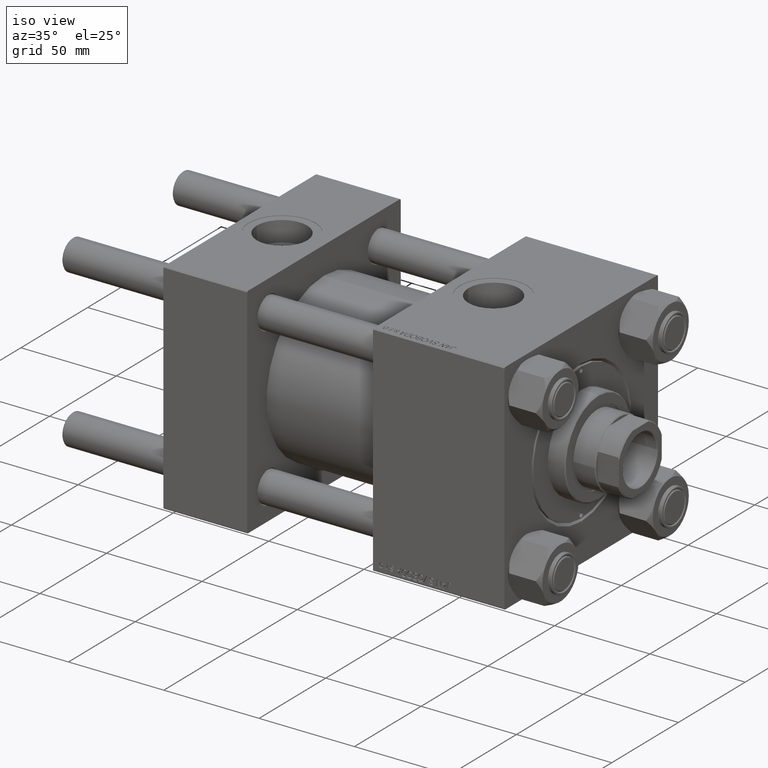
[diagram: clean part render]
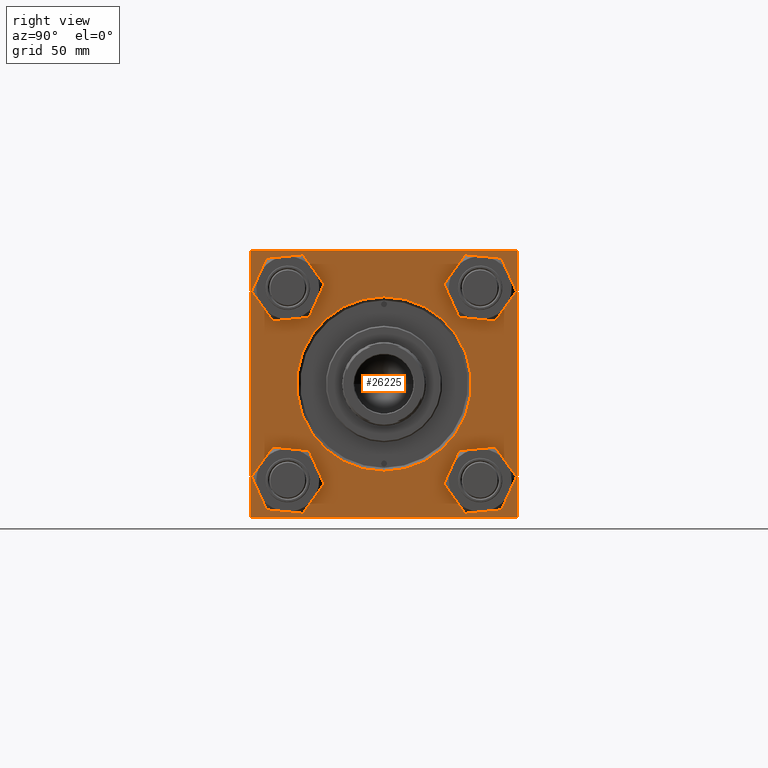
[diagram: tour spotlight — one face highlighted and labeled with its STEP entity id]
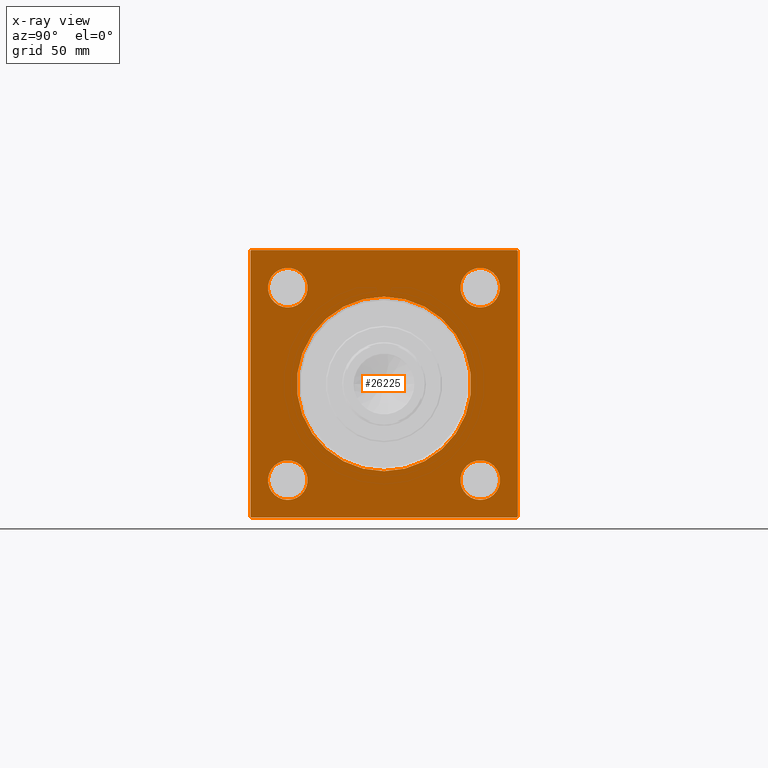
[diagram: x-ray of the same camera — body ghosted, this tour face saturated]
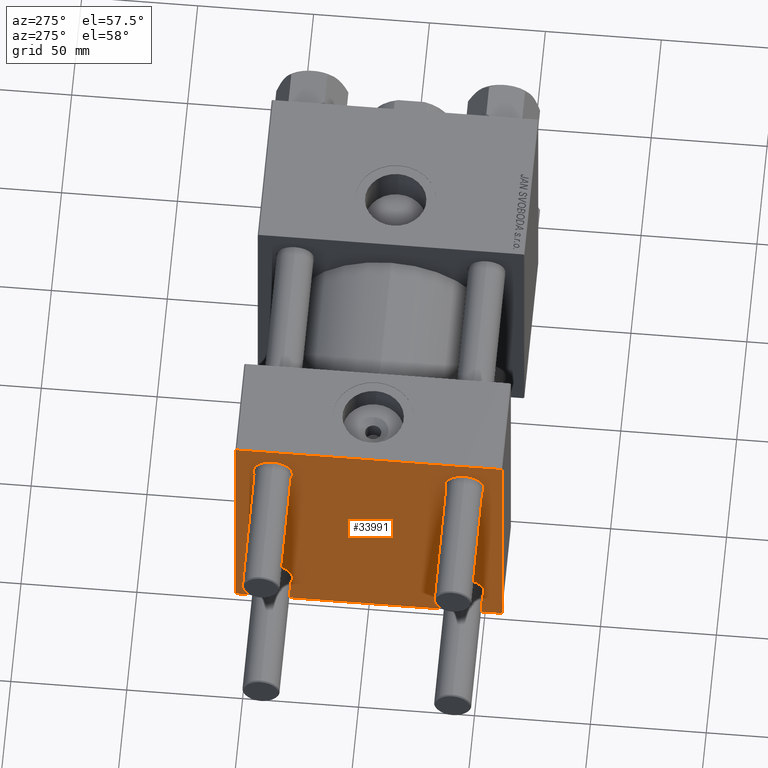
[diagram: tour spotlight — one face highlighted and labeled with its STEP entity id]
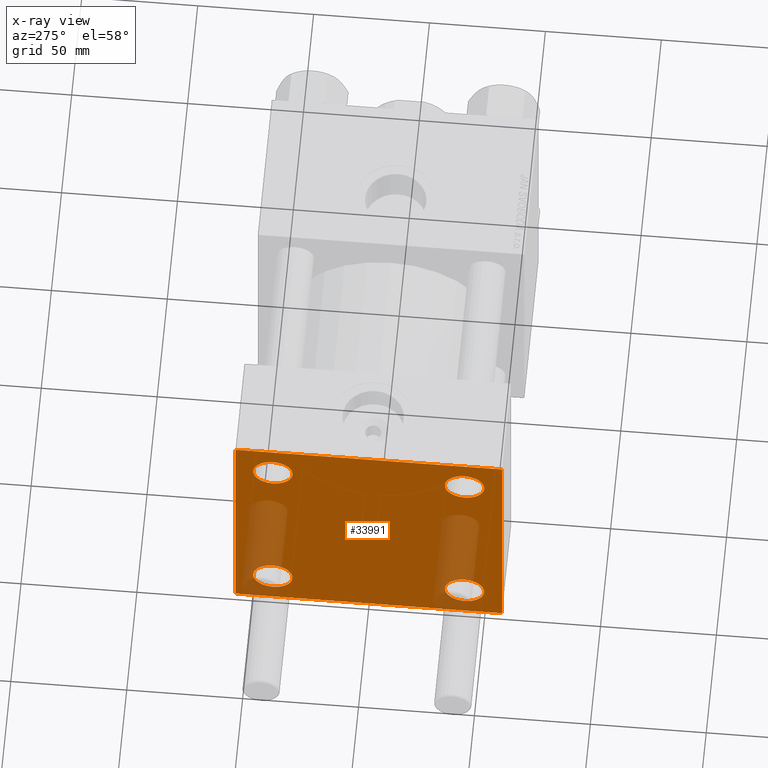
[diagram: x-ray of the same camera — body ghosted, this tour face saturated]
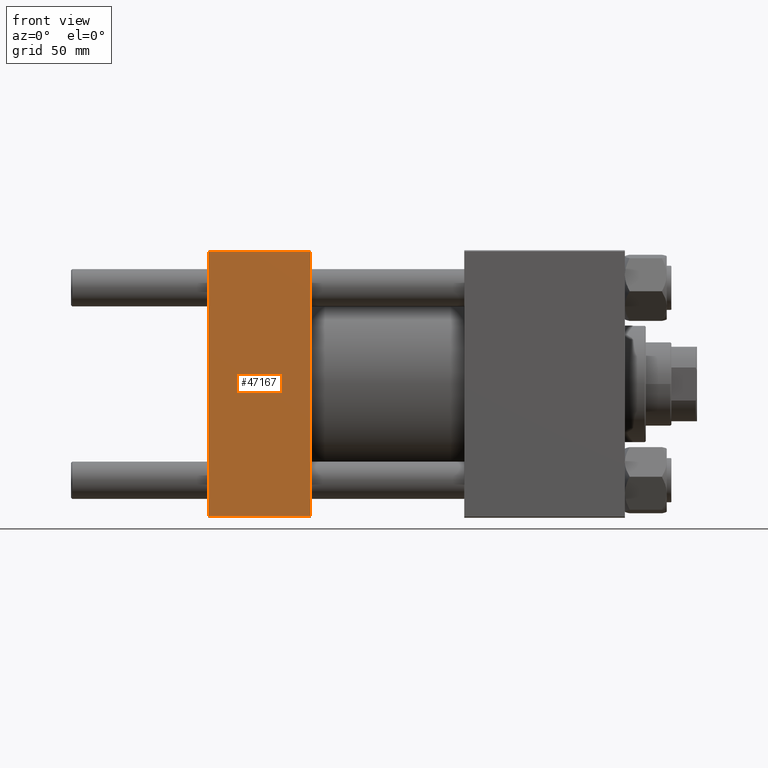
[diagram: tour spotlight — one face highlighted and labeled with its STEP entity id]
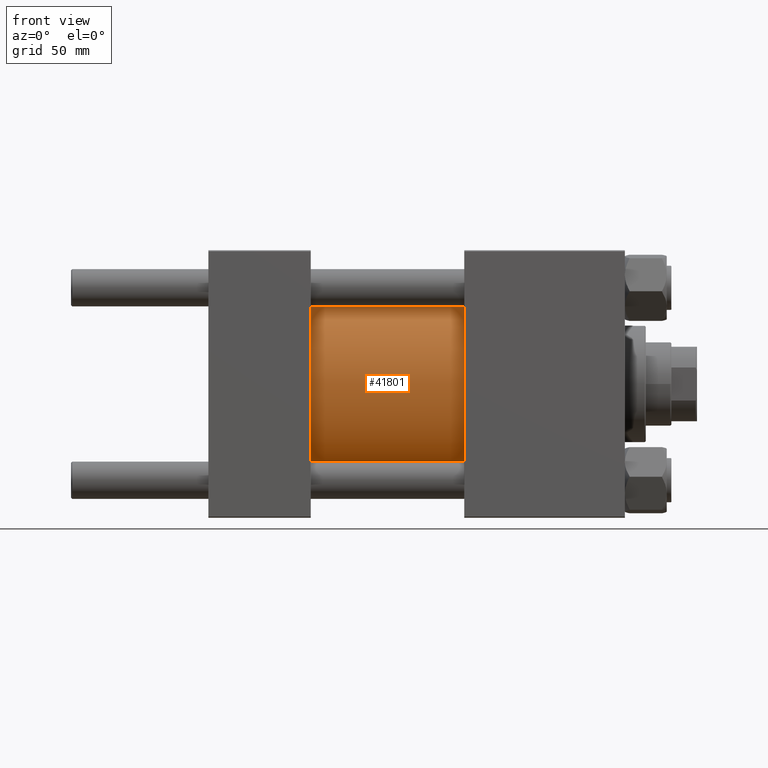
[diagram: tour spotlight — one face highlighted and labeled with its STEP entity id]
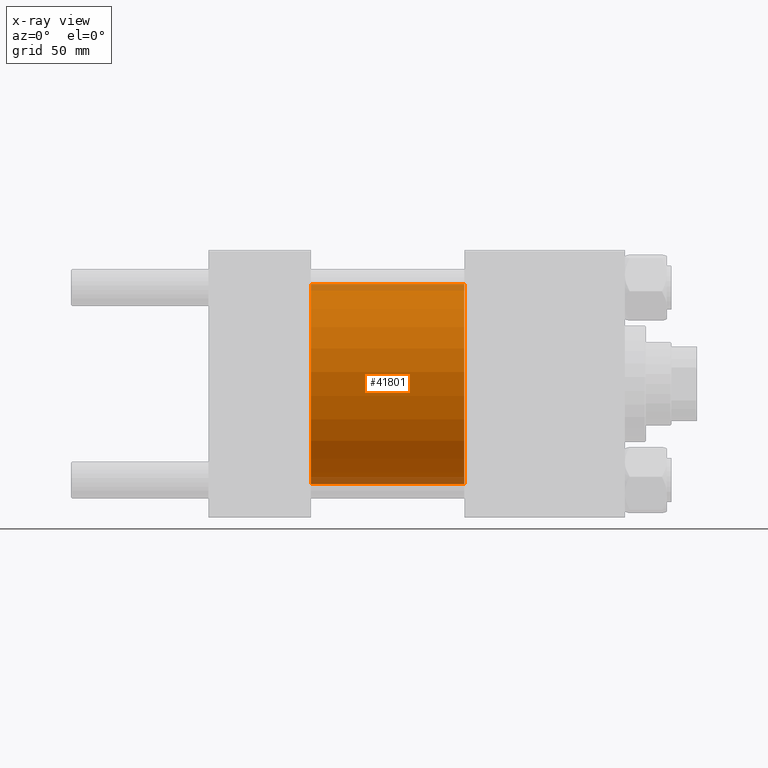
[diagram: x-ray of the same camera — body ghosted, this tour face saturated]
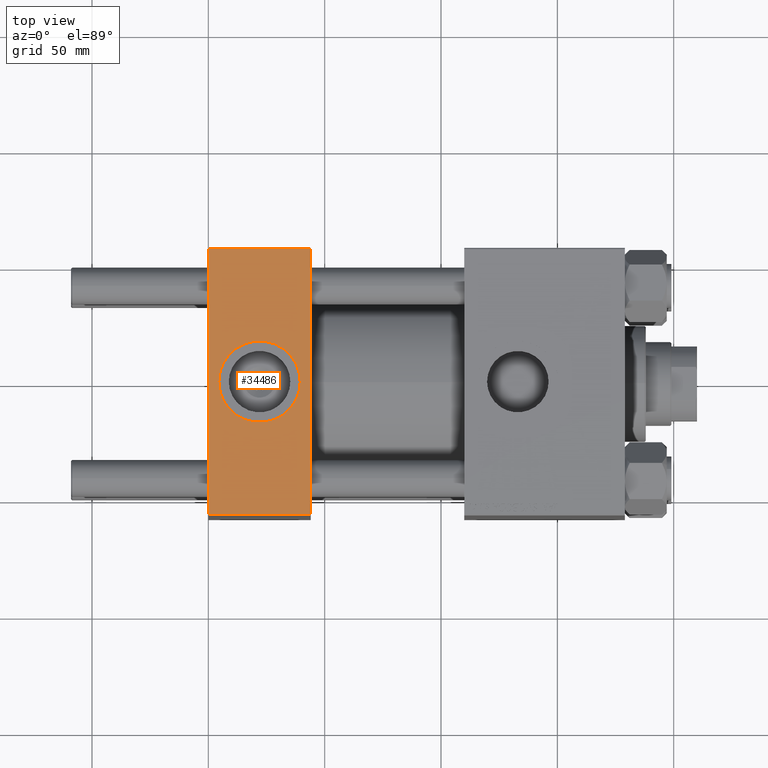
[diagram: tour spotlight — one face highlighted and labeled with its STEP entity id]
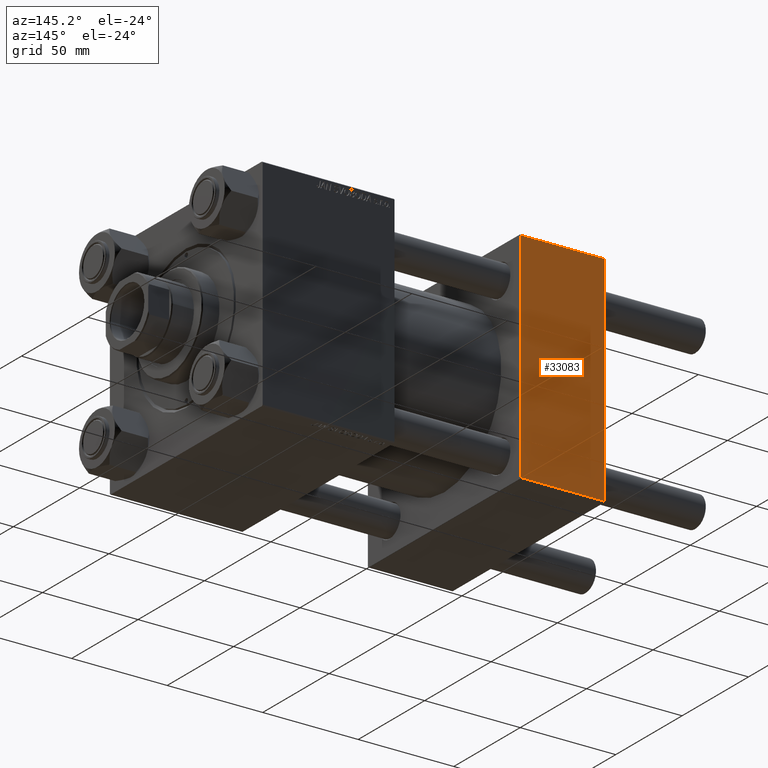
[diagram: tour spotlight — one face highlighted and labeled with its STEP entity id]
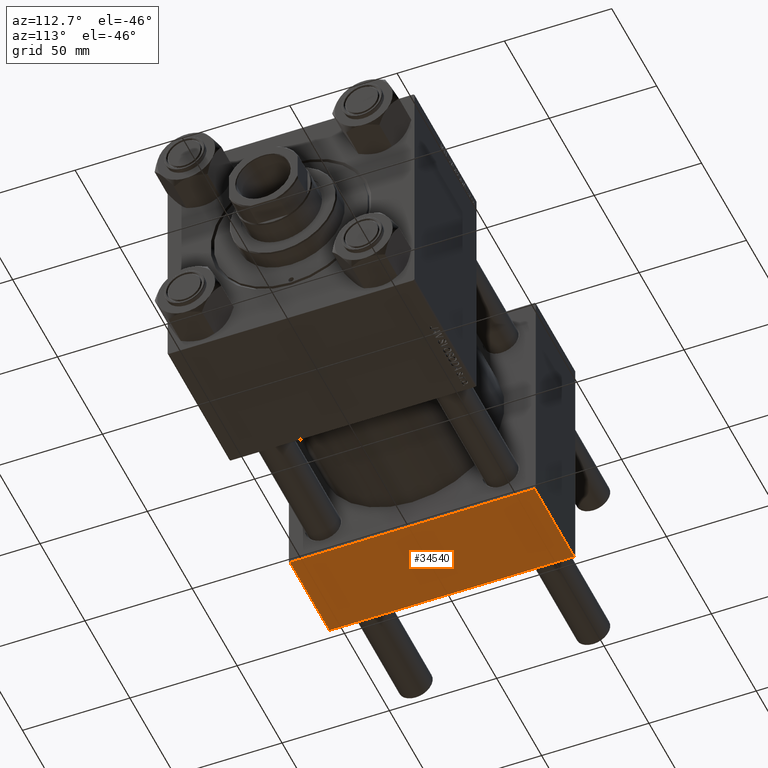
[diagram: tour spotlight — one face highlighted and labeled with its STEP entity id]
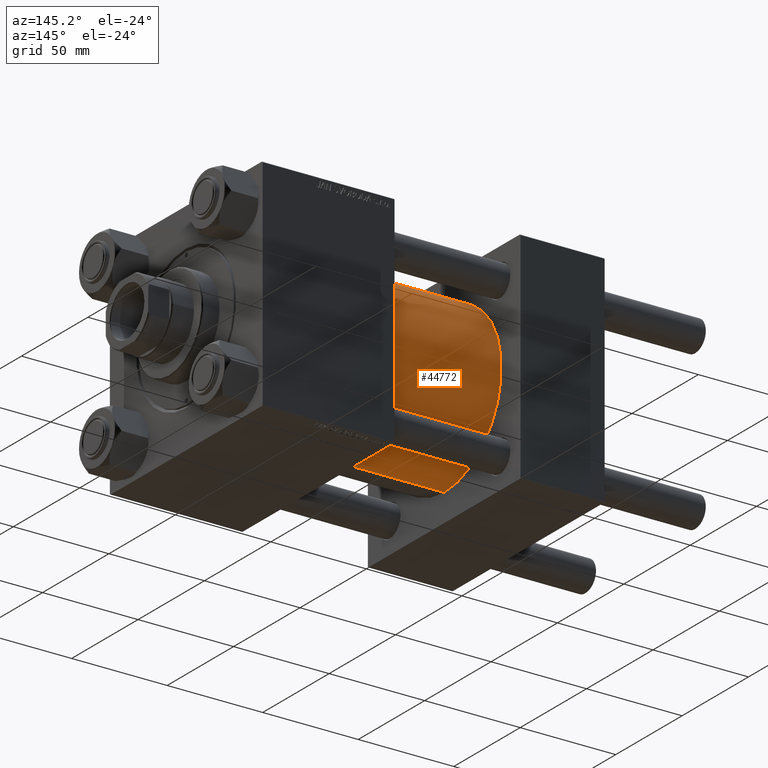
[diagram: tour spotlight — one face highlighted and labeled with its STEP entity id]
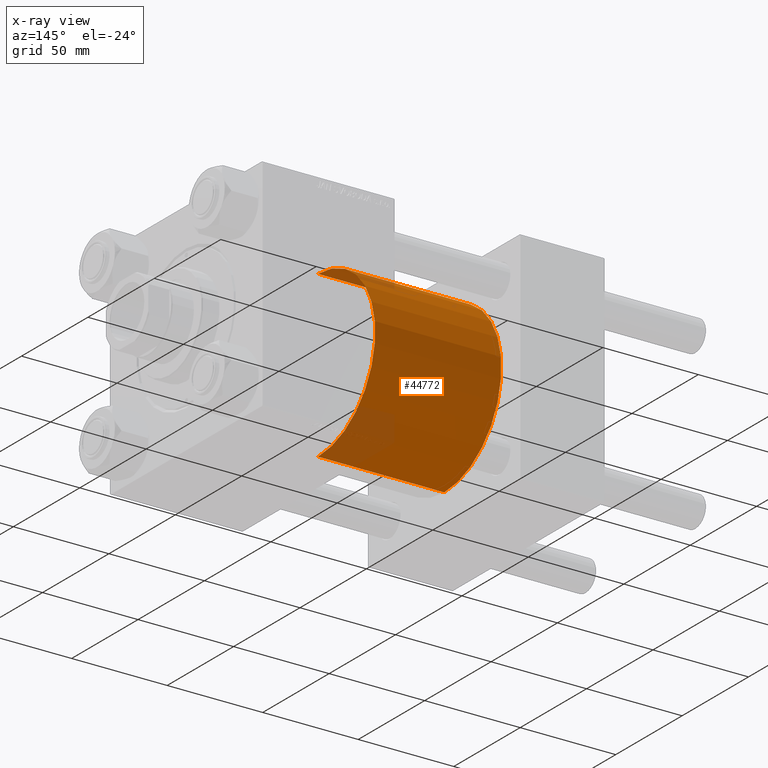
[diagram: x-ray of the same camera — body ghosted, this tour face saturated]
A machine part: a face-by-face anatomy tour. The part has 1188 B-rep faces; the first image is the clean iso view, then the 8 largest visible faces are spotlighted one at a time (largest first), each with its STEP entity span.

Face 1 — right view, entity #26225. An x-ray twin of the same camera follows (body ghosted, this face saturated) — the face is partly hidden behind the body. In plain terms, the highlighted planar face has unit normal (-1, 0, 0).
Definition (entity closure, byte-faithful):
#557 = LINE ( 'NONE', #40007, #48887 ) ;
#655 = CARTESIAN_POINT ( 'NONE',  ( 179.0000000000000000, 0.000000000000000000, -37.50000000000000711 ) ) ;
#891 = EDGE_CURVE ( 'NONE', #45429, #24150, #18004, .T. ) ;
#993 = DIRECTION ( 'NONE',  ( 0.000000000000000000, 0.7071067811865721087, -0.7071067811865230368 ) ) ;
#1015 = EDGE_CURVE ( 'NONE', #6591, #17448, #30802, .T. ) ;
#1147 = ORIENTED_EDGE ( 'NONE', *, *, #29885, .T. ) ;
#1395 = VECTOR ( 'NONE', #14904, 1000.000000000000000 ) ;
#1554 = CARTESIAN_POINT ( 'NONE',  ( 179.0000000000000000, 41.34999999999999432, 49.85000000000001563 ) ) ;
#2016 = AXIS2_PLACEMENT_3D ( 'NONE', #16803, #44575, #9657 ) ;
#2120 = FACE_BOUND ( 'NONE', #20111, .T. ) ;
#2608 = FACE_BOUND ( 'NONE', #5828, .T. ) ;
#3176 = VECTOR ( 'NONE', #26640, 1000.000000000000000 ) ;
#3525 = LINE ( 'NONE', #30261, #44339 ) ;
#3857 = EDGE_CURVE ( 'NONE', #24150, #30100, #47856, .T. ) ;
#4543 = CARTESIAN_POINT ( 'NONE',  ( 179.0000000000000000, -56.99999999999995737, -57.49999999999997868 ) ) ;
#4576 = AXIS2_PLACEMENT_3D ( 'NONE', #33418, #48484, #25528 ) ;
#4856 = CARTESIAN_POINT ( 'NONE',  ( 179.0000000000000000, 56.99999999999997158, 57.50000000000000711 ) ) ;
#5161 = CARTESIAN_POINT ( 'NONE',  ( 179.0000000000000000, 41.34999999999999432, -49.85000000000001563 ) ) ;
#5569 = CARTESIAN_POINT ( 'NONE',  ( 179.0000000000000000, -56.99999999999998579, 57.49999999999999289 ) ) ;
#5710 = LINE ( 'NONE', #17680, #43718 ) ;
#5828 = EDGE_LOOP ( 'NONE', ( #39855, #9512 ) ) ;
#5912 = AXIS2_PLACEMENT_3D ( 'NONE', #49549, #7503, #14637 ) ;
#6467 = DIRECTION ( 'NONE',  ( -1.000000000000000000, 0.000000000000000000, -0.000000000000000000 ) ) ;
#6591 = VERTEX_POINT ( 'NONE', #15125 ) ;
#6872 = EDGE_CURVE ( 'NONE', #26620, #45429, #557, .T. ) ;
#6884 = DIRECTION ( 'NONE',  ( 0.000000000000000000, 0.000000000000000000, 1.000000000000000000 ) ) ;
#7263 = VECTOR ( 'NONE', #993, 1000.000000000000000 ) ;
#7295 = DIRECTION ( 'NONE',  ( 0.000000000000000000, 0.000000000000000000, 1.000000000000000000 ) ) ;
#7461 = CARTESIAN_POINT ( 'NONE',  ( 179.0000000000000000, 56.99999999999997158, 57.50000000000000711 ) ) ;
#7464 = DIRECTION ( 'NONE',  ( 0.000000000000000000, 0.000000000000000000, 1.000000000000000000 ) ) ;
#7503 = DIRECTION ( 'NONE',  ( -1.000000000000000000, 0.000000000000000000, -0.000000000000000000 ) ) ;
#7600 = VERTEX_POINT ( 'NONE', #26495 ) ;
#7642 = EDGE_CURVE ( 'NONE', #48865, #7600, #39144, .T. ) ;
#7685 = DIRECTION ( 'NONE',  ( 0.000000000000000000, 0.000000000000000000, 1.000000000000000000 ) ) ;
#7781 = DIRECTION ( 'NONE',  ( -1.000000000000000000, 0.000000000000000000, -0.000000000000000000 ) ) ;
#8317 = AXIS2_PLACEMENT_3D ( 'NONE', #26067, #6467, #7464 ) ;
#8647 = AXIS2_PLACEMENT_3D ( 'NONE', #42201, #49355, #7295 ) ;
#8845 = AXIS2_PLACEMENT_3D ( 'NONE', #28148, #7781, #16437 ) ;
#9498 = FACE_BOUND ( 'NONE', #27398, .T. ) ;
#9512 = ORIENTED_EDGE ( 'NONE', *, *, #33015, .T. ) ;
#9657 = DIRECTION ( 'NONE',  ( 0.000000000000000000, 0.000000000000000000, 1.000000000000000000 ) ) ;
#10407 = DIRECTION ( 'NONE',  ( 0.000000000000000000, -1.000000000000000000, -1.206764157201257291E-16 ) ) ;
#10622 = EDGE_CURVE ( 'NONE', #13521, #21506, #11587, .T. ) ;
#10685 = CARTESIAN_POINT ( 'NONE',  ( 179.0000000000000000, -41.34999999999998721, 49.85000000000002274 ) ) ;
#10822 = CARTESIAN_POINT ( 'NONE',  ( 179.0000000000000000, 57.50000000000000000, 57.50000000000000711 ) ) ;
#11587 = CIRCLE ( 'NONE', #5912, 8.500000000000007105 ) ;
#11963 = CARTESIAN_POINT ( 'NONE',  ( 179.0000000000000000, 41.34999999999999432, -41.35000000000000142 ) ) ;
#13196 = EDGE_CURVE ( 'NONE', #50102, #23178, #38378, .T. ) ;
#13521 = VERTEX_POINT ( 'NONE', #49566 ) ;
#13814 = PLANE ( 'NONE',  #4576 ) ;
#13869 = VERTEX_POINT ( 'NONE', #17443 ) ;
#14136 = CIRCLE ( 'NONE', #28020, 8.500000000000007105 ) ;
#14594 = CARTESIAN_POINT ( 'NONE',  ( 179.0000000000000000, 57.50000000000000000, 57.00000000000000711 ) ) ;
#14637 = DIRECTION ( 'NONE',  ( 0.000000000000000000, 0.000000000000000000, 1.000000000000000000 ) ) ;
#14904 = DIRECTION ( 'NONE',  ( 0.000000000000000000, 0.000000000000000000, -1.000000000000000000 ) ) ;
#14940 = CARTESIAN_POINT ( 'NONE',  ( 179.0000000000000000, -57.49999999999999289, 56.99999999999996447 ) ) ;
#15125 = CARTESIAN_POINT ( 'NONE',  ( 179.0000000000000000, -41.34999999999998721, -49.85000000000002274 ) ) ;
#16047 = ORIENTED_EDGE ( 'NONE', *, *, #26735, .T. ) ;
#16217 = EDGE_CURVE ( 'NONE', #7600, #48865, #16543, .T. ) ;
#16384 = VERTEX_POINT ( 'NONE', #28302 ) ;
#16437 = DIRECTION ( 'NONE',  ( 0.000000000000000000, 0.000000000000000000, 1.000000000000000000 ) ) ;
#16543 = CIRCLE ( 'NONE', #23852, 37.50000000000000711 ) ;
#16582 = CARTESIAN_POINT ( 'NONE',  ( 179.0000000000000000, 41.34999999999999432, 32.84999999999999432 ) ) ;
#16803 = CARTESIAN_POINT ( 'NONE',  ( 179.0000000000000000, -41.34999999999998721, 41.35000000000000853 ) ) ;
#17282 = DIRECTION ( 'NONE',  ( 0.000000000000000000, -1.000000000000000000, -1.206764157201257291E-16 ) ) ;
#17443 = CARTESIAN_POINT ( 'NONE',  ( 179.0000000000000000, 57.00000000000000000, -57.49999999999996447 ) ) ;
#17448 = VERTEX_POINT ( 'NONE', #29806 ) ;
#17680 = CARTESIAN_POINT ( 'NONE',  ( 179.0000000000000000, 57.50000000000000000, -56.99999999999994316 ) ) ;
#18004 = LINE ( 'NONE', #46014, #3176 ) ;
#18291 = DIRECTION ( 'NONE',  ( -1.000000000000000000, 0.000000000000000000, -0.000000000000000000 ) ) ;
#18315 = CARTESIAN_POINT ( 'NONE',  ( 179.0000000000000000, -56.99999999999995737, -57.49999999999997868 ) ) ;
#19296 = CARTESIAN_POINT ( 'NONE',  ( 179.0000000000000000, -41.34999999999998721, 41.35000000000000853 ) ) ;
#19702 = ORIENTED_EDGE ( 'NONE', *, *, #28875, .T. ) ;
#20111 = EDGE_LOOP ( 'NONE', ( #46166, #30789 ) ) ;
#20399 = LINE ( 'NONE', #4856, #28546 ) ;
#21506 = VERTEX_POINT ( 'NONE', #5161 ) ;
#22614 = ORIENTED_EDGE ( 'NONE', *, *, #48745, .F. ) ;
#22621 = ORIENTED_EDGE ( 'NONE', *, *, #13196, .T. ) ;
#23178 = VERTEX_POINT ( 'NONE', #16582 ) ;
#23513 = EDGE_LOOP ( 'NONE', ( #29845, #29330 ) ) ;
#23745 = EDGE_LOOP ( 'NONE', ( #49914, #25292, #33861, #19702, #22614, #1147, #31414, #39040 ) ) ;
#23852 = AXIS2_PLACEMENT_3D ( 'NONE', #43092, #34686, #7685 ) ;
#24150 = VERTEX_POINT ( 'NONE', #45376 ) ;
#25040 = FACE_OUTER_BOUND ( 'NONE', #23745, .T. ) ;
#25292 = ORIENTED_EDGE ( 'NONE', *, *, #3857, .T. ) ;
#25528 = DIRECTION ( 'NONE',  ( -0.000000000000000000, 0.000000000000000000, 1.000000000000000000 ) ) ;
#25531 = ORIENTED_EDGE ( 'NONE', *, *, #16217, .T. ) ;
#25943 = DIRECTION ( 'NONE',  ( -1.000000000000000000, 0.000000000000000000, -0.000000000000000000 ) ) ;
#26067 = CARTESIAN_POINT ( 'NONE',  ( 179.0000000000000000, -41.34999999999998721, -41.35000000000000853 ) ) ;
#26225 = ADVANCED_FACE ( 'NONE', ( #2608, #2120, #37254, #48977, #9498, #25040 ), #13814, .F. ) ;
#26495 = CARTESIAN_POINT ( 'NONE',  ( 179.0000000000000000, 4.592425496802575156E-15, 37.50000000000000711 ) ) ;
#26620 = VERTEX_POINT ( 'NONE', #5569 ) ;
#26640 = DIRECTION ( 'NONE',  ( 0.000000000000000000, 0.000000000000000000, -1.000000000000000000 ) ) ;
#26735 = EDGE_CURVE ( 'NONE', #23178, #50102, #41197, .T. ) ;
#27398 = EDGE_LOOP ( 'NONE', ( #49656, #25531 ) ) ;
#27468 = EDGE_CURVE ( 'NONE', #13869, #30100, #44556, .T. ) ;
#28020 = AXIS2_PLACEMENT_3D ( 'NONE', #11963, #43047, #32080 ) ;
#28148 = CARTESIAN_POINT ( 'NONE',  ( 179.0000000000000000, -41.34999999999998721, -41.35000000000000853 ) ) ;
#28302 = CARTESIAN_POINT ( 'NONE',  ( 179.0000000000000000, 57.50000000000000000, -56.99999999999994316 ) ) ;
#28485 = VERTEX_POINT ( 'NONE', #10685 ) ;
#28546 = VECTOR ( 'NONE', #43574, 1000.000000000000000 ) ;
#28875 = EDGE_CURVE ( 'NONE', #13869, #16384, #5710, .T. ) ;
#29143 = DIRECTION ( 'NONE',  ( -1.000000000000000000, 0.000000000000000000, -0.000000000000000000 ) ) ;
#29330 = ORIENTED_EDGE ( 'NONE', *, *, #38697, .T. ) ;
#29383 = VERTEX_POINT ( 'NONE', #7461 ) ;
#29617 = CIRCLE ( 'NONE', #2016, 8.500000000000007105 ) ;
#29806 = CARTESIAN_POINT ( 'NONE',  ( 179.0000000000000000, -41.34999999999998721, -32.85000000000000142 ) ) ;
#29845 = ORIENTED_EDGE ( 'NONE', *, *, #35251, .T. ) ;
#29885 = EDGE_CURVE ( 'NONE', #39202, #29383, #20399, .T. ) ;
#30100 = VERTEX_POINT ( 'NONE', #18315 ) ;
#30255 = DIRECTION ( 'NONE',  ( 0.000000000000000000, 0.000000000000000000, 1.000000000000000000 ) ) ;
#30261 = CARTESIAN_POINT ( 'NONE',  ( 179.0000000000000000, 57.50000000000000000, 57.50000000000000711 ) ) ;
#30574 = CARTESIAN_POINT ( 'NONE',  ( 179.0000000000000000, 0.000000000000000000, 0.000000000000000000 ) ) ;
#30789 = ORIENTED_EDGE ( 'NONE', *, *, #10622, .T. ) ;
#30802 = CIRCLE ( 'NONE', #8845, 8.500000000000007105 ) ;
#31149 = CIRCLE ( 'NONE', #39294, 8.500000000000007105 ) ;
#31387 = CARTESIAN_POINT ( 'NONE',  ( 179.0000000000000000, -41.34999999999998721, 32.85000000000000142 ) ) ;
#31414 = ORIENTED_EDGE ( 'NONE', *, *, #39607, .T. ) ;
#32080 = DIRECTION ( 'NONE',  ( 0.000000000000000000, 0.000000000000000000, 1.000000000000000000 ) ) ;
#33015 = EDGE_CURVE ( 'NONE', #17448, #6591, #41647, .T. ) ;
#33418 = CARTESIAN_POINT ( 'NONE',  ( 179.0000000000000000, 0.000000000000000000, 0.000000000000000000 ) ) ;
#33579 = CARTESIAN_POINT ( 'NONE',  ( 179.0000000000000000, 41.34999999999999432, 41.35000000000000142 ) ) ;
#33861 = ORIENTED_EDGE ( 'NONE', *, *, #27468, .F. ) ;
#34686 = DIRECTION ( 'NONE',  ( -1.000000000000000000, 0.000000000000000000, -0.000000000000000000 ) ) ;
#35251 = EDGE_CURVE ( 'NONE', #49126, #28485, #31149, .T. ) ;
#35956 = AXIS2_PLACEMENT_3D ( 'NONE', #33579, #25943, #30255 ) ;
#37254 = FACE_BOUND ( 'NONE', #46167, .T. ) ;
#38378 = CIRCLE ( 'NONE', #35956, 8.500000000000007105 ) ;
#38521 = EDGE_CURVE ( 'NONE', #21506, #13521, #14136, .T. ) ;
#38697 = EDGE_CURVE ( 'NONE', #28485, #49126, #29617, .T. ) ;
#39040 = ORIENTED_EDGE ( 'NONE', *, *, #6872, .T. ) ;
#39144 = CIRCLE ( 'NONE', #43234, 37.50000000000000711 ) ;
#39202 = VERTEX_POINT ( 'NONE', #14594 ) ;
#39294 = AXIS2_PLACEMENT_3D ( 'NONE', #19296, #18291, #49616 ) ;
#39581 = VECTOR ( 'NONE', #17282, 1000.000000000000000 ) ;
#39607 = EDGE_CURVE ( 'NONE', #29383, #26620, #3525, .T. ) ;
#39855 = ORIENTED_EDGE ( 'NONE', *, *, #1015, .T. ) ;
#40007 = CARTESIAN_POINT ( 'NONE',  ( 179.0000000000000000, -57.49999999999999289, 56.99999999999996447 ) ) ;
#41197 = CIRCLE ( 'NONE', #8647, 8.500000000000007105 ) ;
#41647 = CIRCLE ( 'NONE', #8317, 8.500000000000007105 ) ;
#42201 = CARTESIAN_POINT ( 'NONE',  ( 179.0000000000000000, 41.34999999999999432, 41.35000000000000142 ) ) ;
#43047 = DIRECTION ( 'NONE',  ( -1.000000000000000000, 0.000000000000000000, -0.000000000000000000 ) ) ;
#43092 = CARTESIAN_POINT ( 'NONE',  ( 179.0000000000000000, 0.000000000000000000, 0.000000000000000000 ) ) ;
#43234 = AXIS2_PLACEMENT_3D ( 'NONE', #30574, #29143, #6884 ) ;
#43331 = DIRECTION ( 'NONE',  ( -0.000000000000000000, -0.7071067811865328068, -0.7071067811865622277 ) ) ;
#43574 = DIRECTION ( 'NONE',  ( 0.000000000000000000, -0.7071067811865672237, 0.7071067811865279218 ) ) ;
#43718 = VECTOR ( 'NONE', #48002, 1000.000000000000000 ) ;
#44293 = CARTESIAN_POINT ( 'NONE',  ( 179.0000000000000000, 57.50000000000000000, -57.49999999999996447 ) ) ;
#44339 = VECTOR ( 'NONE', #10407, 1000.000000000000000 ) ;
#44556 = LINE ( 'NONE', #44293, #39581 ) ;
#44575 = DIRECTION ( 'NONE',  ( -1.000000000000000000, 0.000000000000000000, -0.000000000000000000 ) ) ;
#45376 = CARTESIAN_POINT ( 'NONE',  ( 179.0000000000000000, -57.49999999999999289, -56.99999999999997868 ) ) ;
#45429 = VERTEX_POINT ( 'NONE', #14940 ) ;
#46014 = CARTESIAN_POINT ( 'NONE',  ( 179.0000000000000000, -57.49999999999999289, 57.49999999999999289 ) ) ;
#46166 = ORIENTED_EDGE ( 'NONE', *, *, #38521, .T. ) ;
#46167 = EDGE_LOOP ( 'NONE', ( #16047, #22621 ) ) ;
#47856 = LINE ( 'NONE', #4543, #7263 ) ;
#48002 = DIRECTION ( 'NONE',  ( -0.000000000000000000, 0.7071067811865279218, 0.7071067811865672237 ) ) ;
#48484 = DIRECTION ( 'NONE',  ( -1.000000000000000000, 0.000000000000000000, -0.000000000000000000 ) ) ;
#48745 = EDGE_CURVE ( 'NONE', #39202, #16384, #49811, .T. ) ;
#48865 = VERTEX_POINT ( 'NONE', #655 ) ;
#48887 = VECTOR ( 'NONE', #43331, 1000.000000000000000 ) ;
#48977 = FACE_BOUND ( 'NONE', #23513, .T. ) ;
#49126 = VERTEX_POINT ( 'NONE', #31387 ) ;
#49355 = DIRECTION ( 'NONE',  ( -1.000000000000000000, 0.000000000000000000, -0.000000000000000000 ) ) ;
#49549 = CARTESIAN_POINT ( 'NONE',  ( 179.0000000000000000, 41.34999999999999432, -41.35000000000000142 ) ) ;
#49566 = CARTESIAN_POINT ( 'NONE',  ( 179.0000000000000000, 41.34999999999999432, -32.84999999999999432 ) ) ;
#49616 = DIRECTION ( 'NONE',  ( 0.000000000000000000, 0.000000000000000000, 1.000000000000000000 ) ) ;
#49656 = ORIENTED_EDGE ( 'NONE', *, *, #7642, .T. ) ;
#49811 = LINE ( 'NONE', #10822, #1395 ) ;
#49914 = ORIENTED_EDGE ( 'NONE', *, *, #891, .T. ) ;
#50102 = VERTEX_POINT ( 'NONE', #1554 ) ;

Face 2 — auxiliary view, entity #33991. An x-ray twin of the same camera follows (body ghosted, this face saturated) — the face is partly hidden behind the body. In plain terms, the highlighted planar face has unit normal (-1, 0, 0).
Definition (entity closure, byte-faithful):
#23 = CARTESIAN_POINT ( 'NONE',  ( 0.000000000000000000, 57.49999999999999289, -57.00000000000000711 ) ) ;
#402 = CIRCLE ( 'NONE', #23153, 8.499999999999992895 ) ;
#567 = CIRCLE ( 'NONE', #23344, 8.499999999999992895 ) ;
#603 = VERTEX_POINT ( 'NONE', #39930 ) ;
#1135 = ORIENTED_EDGE ( 'NONE', *, *, #24968, .T. ) ;
#1536 = CARTESIAN_POINT ( 'NONE',  ( 0.000000000000000000, -57.25000000000000711, -57.25000000000000711 ) ) ;
#1625 = ORIENTED_EDGE ( 'NONE', *, *, #12128, .T. ) ;
#2200 = CIRCLE ( 'NONE', #13576, 8.499999999999992895 ) ;
#2629 = CIRCLE ( 'NONE', #41654, 8.499999999999992895 ) ;
#2870 = VECTOR ( 'NONE', #20602, 1000.000000000000114 ) ;
#2978 = FACE_BOUND ( 'NONE', #40050, .T. ) ;
#3906 = CARTESIAN_POINT ( 'NONE',  ( 0.000000000000000000, 57.49999999999999289, 57.50000000000000711 ) ) ;
#4093 = LINE ( 'NONE', #38976, #21365 ) ;
#4291 = LINE ( 'NONE', #19834, #2870 ) ;
#4816 = VERTEX_POINT ( 'NONE', #23 ) ;
#5097 = AXIS2_PLACEMENT_3D ( 'NONE', #17526, #10847, #14185 ) ;
#5213 = DIRECTION ( 'NONE',  ( 1.000000000000000000, -0.000000000000000000, 0.000000000000000000 ) ) ;
#5550 = ORIENTED_EDGE ( 'NONE', *, *, #7485, .T. ) ;
#6057 = ORIENTED_EDGE ( 'NONE', *, *, #34018, .T. ) ;
#6643 = DIRECTION ( 'NONE',  ( 1.000000000000000000, -0.000000000000000000, 0.000000000000000000 ) ) ;
#6705 = CARTESIAN_POINT ( 'NONE',  ( 0.000000000000000000, 41.34999999999999432, -49.85000000000000142 ) ) ;
#7485 = EDGE_CURVE ( 'NONE', #23842, #15349, #36734, .T. ) ;
#7651 = CARTESIAN_POINT ( 'NONE',  ( 0.000000000000000000, -57.00000000000003553, 57.49999999999999289 ) ) ;
#7669 = VECTOR ( 'NONE', #24939, 1000.000000000000114 ) ;
#7796 = LINE ( 'NONE', #27402, #27723 ) ;
#7811 = EDGE_CURVE ( 'NONE', #23504, #10052, #32842, .T. ) ;
#8343 = DIRECTION ( 'NONE',  ( 1.000000000000000000, -0.000000000000000000, 0.000000000000000000 ) ) ;
#8469 = CARTESIAN_POINT ( 'NONE',  ( 0.000000000000000000, -41.34999999999998721, -32.85000000000001563 ) ) ;
#8494 = VERTEX_POINT ( 'NONE', #6705 ) ;
#9016 = CARTESIAN_POINT ( 'NONE',  ( 0.000000000000000000, -57.00000000000000711, -57.50000000000000711 ) ) ;
#9102 = CARTESIAN_POINT ( 'NONE',  ( 0.000000000000000000, 41.34999999999999432, 32.85000000000000853 ) ) ;
#9158 = DIRECTION ( 'NONE',  ( 0.000000000000000000, -0.7071067811865474617, 0.7071067811865474617 ) ) ;
#10052 = VERTEX_POINT ( 'NONE', #17860 ) ;
#10567 = ORIENTED_EDGE ( 'NONE', *, *, #7811, .T. ) ;
#10713 = CIRCLE ( 'NONE', #17235, 8.499999999999992895 ) ;
#10829 = DIRECTION ( 'NONE',  ( 0.000000000000000000, 0.000000000000000000, 1.000000000000000000 ) ) ;
#10847 = DIRECTION ( 'NONE',  ( -1.000000000000000000, 0.000000000000000000, -0.000000000000000000 ) ) ;
#11005 = CARTESIAN_POINT ( 'NONE',  ( 0.000000000000000000, 41.34999999999999432, -32.85000000000000853 ) ) ;
#11833 = AXIS2_PLACEMENT_3D ( 'NONE', #26591, #37805, #45225 ) ;
#12128 = EDGE_CURVE ( 'NONE', #15349, #23842, #10713, .T. ) ;
#12723 = CARTESIAN_POINT ( 'NONE',  ( 0.000000000000000000, 57.24999999999922551, 57.25000000000081712 ) ) ;
#13036 = ORIENTED_EDGE ( 'NONE', *, *, #25071, .T. ) ;
#13220 = LINE ( 'NONE', #12723, #7669 ) ;
#13576 = AXIS2_PLACEMENT_3D ( 'NONE', #25762, #6643, #34393 ) ;
#13742 = EDGE_CURVE ( 'NONE', #36318, #36967, #2629, .T. ) ;
#14185 = DIRECTION ( 'NONE',  ( -0.000000000000000000, 0.000000000000000000, 1.000000000000000000 ) ) ;
#14329 = EDGE_CURVE ( 'NONE', #29293, #32520, #45082, .T. ) ;
#14675 = FACE_BOUND ( 'NONE', #33955, .T. ) ;
#15349 = VERTEX_POINT ( 'NONE', #30852 ) ;
#15995 = CARTESIAN_POINT ( 'NONE',  ( 0.000000000000000000, 41.34999999999999432, 49.85000000000000142 ) ) ;
#16419 = CARTESIAN_POINT ( 'NONE',  ( 0.000000000000000000, 41.34999999999999432, -41.35000000000000142 ) ) ;
#17086 = VERTEX_POINT ( 'NONE', #11005 ) ;
#17235 = AXIS2_PLACEMENT_3D ( 'NONE', #42054, #8343, #37724 ) ;
#17526 = CARTESIAN_POINT ( 'NONE',  ( 0.000000000000000000, 0.000000000000000000, 0.000000000000000000 ) ) ;
#17566 = EDGE_CURVE ( 'NONE', #603, #25012, #13220, .T. ) ;
#17632 = DIRECTION ( 'NONE',  ( 1.000000000000000000, -0.000000000000000000, 0.000000000000000000 ) ) ;
#17860 = CARTESIAN_POINT ( 'NONE',  ( 0.000000000000000000, -57.50000000000000711, -57.00000000000000711 ) ) ;
#18062 = CARTESIAN_POINT ( 'NONE',  ( -0.000000000000000000, -57.25000000000081712, 57.24999999999922551 ) ) ;
#18508 = FACE_BOUND ( 'NONE', #29646, .T. ) ;
#18816 = ORIENTED_EDGE ( 'NONE', *, *, #13742, .T. ) ;
#19443 = DIRECTION ( 'NONE',  ( 0.000000000000000000, -1.000000000000000000, -1.206764157201257045E-16 ) ) ;
#19834 = CARTESIAN_POINT ( 'NONE',  ( 0.000000000000000000, 57.25000000000081712, -57.24999999999922551 ) ) ;
#20510 = CARTESIAN_POINT ( 'NONE',  ( 0.000000000000000000, 57.49999999999999289, 57.00000000000003553 ) ) ;
#20602 = DIRECTION ( 'NONE',  ( -0.000000000000000000, -0.7071067811865376918, -0.7071067811865573427 ) ) ;
#20609 = CARTESIAN_POINT ( 'NONE',  ( 0.000000000000000000, -57.50000000000000711, 57.00000000000000711 ) ) ;
#21365 = VECTOR ( 'NONE', #23455, 1000.000000000000000 ) ;
#21534 = CARTESIAN_POINT ( 'NONE',  ( 0.000000000000000000, 41.34999999999999432, 41.35000000000000142 ) ) ;
#22071 = AXIS2_PLACEMENT_3D ( 'NONE', #48009, #5213, #28125 ) ;
#22136 = VECTOR ( 'NONE', #19443, 1000.000000000000000 ) ;
#23107 = EDGE_CURVE ( 'NONE', #26559, #49199, #33803, .T. ) ;
#23153 = AXIS2_PLACEMENT_3D ( 'NONE', #21534, #36312, #37069 ) ;
#23344 = AXIS2_PLACEMENT_3D ( 'NONE', #16419, #17632, #25264 ) ;
#23345 = DIRECTION ( 'NONE',  ( 0.000000000000000000, 0.000000000000000000, -1.000000000000000000 ) ) ;
#23455 = DIRECTION ( 'NONE',  ( 0.000000000000000000, 0.000000000000000000, -1.000000000000000000 ) ) ;
#23504 = VERTEX_POINT ( 'NONE', #9016 ) ;
#23842 = VERTEX_POINT ( 'NONE', #27049 ) ;
#24939 = DIRECTION ( 'NONE',  ( 0.000000000000000000, 0.7071067811865573427, -0.7071067811865376918 ) ) ;
#24968 = EDGE_CURVE ( 'NONE', #8494, #17086, #567, .T. ) ;
#25012 = VERTEX_POINT ( 'NONE', #20510 ) ;
#25071 = EDGE_CURVE ( 'NONE', #49199, #26559, #2200, .T. ) ;
#25264 = DIRECTION ( 'NONE',  ( 0.000000000000000000, 0.000000000000000000, 1.000000000000000000 ) ) ;
#25762 = CARTESIAN_POINT ( 'NONE',  ( 0.000000000000000000, -41.34999999999998721, -41.35000000000000853 ) ) ;
#26169 = EDGE_LOOP ( 'NONE', ( #13036, #48612 ) ) ;
#26559 = VERTEX_POINT ( 'NONE', #44286 ) ;
#26591 = CARTESIAN_POINT ( 'NONE',  ( 0.000000000000000000, -41.34999999999998721, -41.35000000000000853 ) ) ;
#27049 = CARTESIAN_POINT ( 'NONE',  ( 0.000000000000000000, -41.34999999999998721, 32.85000000000001563 ) ) ;
#27402 = CARTESIAN_POINT ( 'NONE',  ( 0.000000000000000000, 57.49999999999999289, 57.50000000000000711 ) ) ;
#27723 = VECTOR ( 'NONE', #23345, 1000.000000000000000 ) ;
#28049 = VECTOR ( 'NONE', #30152, 1000.000000000000000 ) ;
#28125 = DIRECTION ( 'NONE',  ( 0.000000000000000000, 0.000000000000000000, 1.000000000000000000 ) ) ;
#29293 = VERTEX_POINT ( 'NONE', #20609 ) ;
#29646 = EDGE_LOOP ( 'NONE', ( #38392, #18816 ) ) ;
#29711 = CARTESIAN_POINT ( 'NONE',  ( 0.000000000000000000, 41.34999999999999432, -41.35000000000000142 ) ) ;
#30152 = DIRECTION ( 'NONE',  ( 0.000000000000000000, -1.000000000000000000, -1.206764157201257045E-16 ) ) ;
#30852 = CARTESIAN_POINT ( 'NONE',  ( 0.000000000000000000, -41.34999999999998721, 49.85000000000000853 ) ) ;
#31201 = CARTESIAN_POINT ( 'NONE',  ( 0.000000000000000000, 41.34999999999999432, 41.35000000000000142 ) ) ;
#31332 = EDGE_CURVE ( 'NONE', #25012, #4816, #7796, .T. ) ;
#32520 = VERTEX_POINT ( 'NONE', #7651 ) ;
#32842 = LINE ( 'NONE', #1536, #42436 ) ;
#33141 = EDGE_CURVE ( 'NONE', #603, #32520, #38785, .T. ) ;
#33460 = EDGE_CURVE ( 'NONE', #29293, #10052, #4093, .T. ) ;
#33803 = CIRCLE ( 'NONE', #11833, 8.499999999999992895 ) ;
#33955 = EDGE_LOOP ( 'NONE', ( #6057, #1135 ) ) ;
#33991 = ADVANCED_FACE ( 'NONE', ( #2978, #45764, #14675, #18508, #48853 ), #49585, .T. ) ;
#34018 = EDGE_CURVE ( 'NONE', #17086, #8494, #40072, .T. ) ;
#34336 = DIRECTION ( 'NONE',  ( -0.000000000000000000, 0.7071067811865376918, 0.7071067811865573427 ) ) ;
#34393 = DIRECTION ( 'NONE',  ( 0.000000000000000000, 0.000000000000000000, 1.000000000000000000 ) ) ;
#35179 = AXIS2_PLACEMENT_3D ( 'NONE', #29711, #44785, #45282 ) ;
#35585 = ORIENTED_EDGE ( 'NONE', *, *, #17566, .T. ) ;
#36312 = DIRECTION ( 'NONE',  ( 1.000000000000000000, -0.000000000000000000, 0.000000000000000000 ) ) ;
#36318 = VERTEX_POINT ( 'NONE', #9102 ) ;
#36734 = CIRCLE ( 'NONE', #22071, 8.499999999999992895 ) ;
#36967 = VERTEX_POINT ( 'NONE', #15995 ) ;
#37069 = DIRECTION ( 'NONE',  ( 0.000000000000000000, 0.000000000000000000, 1.000000000000000000 ) ) ;
#37643 = VERTEX_POINT ( 'NONE', #47884 ) ;
#37724 = DIRECTION ( 'NONE',  ( 0.000000000000000000, 0.000000000000000000, 1.000000000000000000 ) ) ;
#37805 = DIRECTION ( 'NONE',  ( 1.000000000000000000, -0.000000000000000000, 0.000000000000000000 ) ) ;
#38058 = CARTESIAN_POINT ( 'NONE',  ( 0.000000000000000000, 57.49999999999999289, -57.49999999999999289 ) ) ;
#38392 = ORIENTED_EDGE ( 'NONE', *, *, #43898, .T. ) ;
#38486 = ORIENTED_EDGE ( 'NONE', *, *, #44828, .T. ) ;
#38785 = LINE ( 'NONE', #3906, #22136 ) ;
#38976 = CARTESIAN_POINT ( 'NONE',  ( 0.000000000000000000, -57.50000000000000711, 57.49999999999999289 ) ) ;
#38999 = ORIENTED_EDGE ( 'NONE', *, *, #33460, .F. ) ;
#39930 = CARTESIAN_POINT ( 'NONE',  ( 0.000000000000000000, 57.00000000000000711, 57.50000000000000711 ) ) ;
#40050 = EDGE_LOOP ( 'NONE', ( #1625, #5550 ) ) ;
#40072 = CIRCLE ( 'NONE', #35179, 8.499999999999992895 ) ;
#41037 = ORIENTED_EDGE ( 'NONE', *, *, #44306, .T. ) ;
#41654 = AXIS2_PLACEMENT_3D ( 'NONE', #31201, #50323, #10829 ) ;
#41698 = VECTOR ( 'NONE', #34336, 1000.000000000000114 ) ;
#41722 = ORIENTED_EDGE ( 'NONE', *, *, #31332, .T. ) ;
#42054 = CARTESIAN_POINT ( 'NONE',  ( 0.000000000000000000, -41.34999999999998721, 41.35000000000000853 ) ) ;
#42436 = VECTOR ( 'NONE', #9158, 1000.000000000000114 ) ;
#43819 = ORIENTED_EDGE ( 'NONE', *, *, #14329, .T. ) ;
#43898 = EDGE_CURVE ( 'NONE', #36967, #36318, #402, .T. ) ;
#44286 = CARTESIAN_POINT ( 'NONE',  ( 0.000000000000000000, -41.34999999999998721, -49.85000000000000853 ) ) ;
#44295 = EDGE_LOOP ( 'NONE', ( #41722, #41037, #38486, #10567, #38999, #43819, #46996, #35585 ) ) ;
#44306 = EDGE_CURVE ( 'NONE', #4816, #37643, #4291, .T. ) ;
#44785 = DIRECTION ( 'NONE',  ( 1.000000000000000000, -0.000000000000000000, 0.000000000000000000 ) ) ;
#44828 = EDGE_CURVE ( 'NONE', #37643, #23504, #50036, .T. ) ;
#45082 = LINE ( 'NONE', #18062, #41698 ) ;
#45225 = DIRECTION ( 'NONE',  ( 0.000000000000000000, 0.000000000000000000, 1.000000000000000000 ) ) ;
#45282 = DIRECTION ( 'NONE',  ( 0.000000000000000000, 0.000000000000000000, 1.000000000000000000 ) ) ;
#45764 = FACE_BOUND ( 'NONE', #26169, .T. ) ;
#46996 = ORIENTED_EDGE ( 'NONE', *, *, #33141, .F. ) ;
#47884 = CARTESIAN_POINT ( 'NONE',  ( 0.000000000000000000, 57.00000000000002132, -57.49999999999999289 ) ) ;
#48009 = CARTESIAN_POINT ( 'NONE',  ( 0.000000000000000000, -41.34999999999998721, 41.35000000000000853 ) ) ;
#48612 = ORIENTED_EDGE ( 'NONE', *, *, #23107, .T. ) ;
#48853 = FACE_OUTER_BOUND ( 'NONE', #44295, .T. ) ;
#49199 = VERTEX_POINT ( 'NONE', #8469 ) ;
#49585 = PLANE ( 'NONE',  #5097 ) ;
#50036 = LINE ( 'NONE', #38058, #28049 ) ;
#50323 = DIRECTION ( 'NONE',  ( 1.000000000000000000, -0.000000000000000000, 0.000000000000000000 ) ) ;

Face 3 — front view, entity #47167. In plain terms, the highlighted planar face has unit normal (0, 1, 0).
Definition (entity closure, byte-faithful):
#4093 = LINE ( 'NONE', #38976, #21365 ) ;
#4452 = VERTEX_POINT ( 'NONE', #7674 ) ;
#4708 = CARTESIAN_POINT ( 'NONE',  ( 44.00000000000000000, -57.50000000000000711, 57.49999999999999289 ) ) ;
#5667 = EDGE_CURVE ( 'NONE', #10052, #4452, #17698, .T. ) ;
#6248 = ORIENTED_EDGE ( 'NONE', *, *, #33460, .T. ) ;
#6446 = EDGE_CURVE ( 'NONE', #37521, #29293, #48295, .T. ) ;
#7519 = EDGE_CURVE ( 'NONE', #37521, #4452, #39593, .T. ) ;
#7674 = CARTESIAN_POINT ( 'NONE',  ( 44.00000000000000000, -57.50000000000000711, -57.00000000000000711 ) ) ;
#7884 = CARTESIAN_POINT ( 'NONE',  ( 44.00000000000000000, -57.50000000000000711, 57.00000000000000711 ) ) ;
#9561 = CARTESIAN_POINT ( 'NONE',  ( 44.00000000000000000, -57.50000000000000711, 57.00000000000000711 ) ) ;
#10052 = VERTEX_POINT ( 'NONE', #17860 ) ;
#14812 = FACE_OUTER_BOUND ( 'NONE', #44163, .T. ) ;
#17698 = LINE ( 'NONE', #17936, #39065 ) ;
#17860 = CARTESIAN_POINT ( 'NONE',  ( 0.000000000000000000, -57.50000000000000711, -57.00000000000000711 ) ) ;
#17936 = CARTESIAN_POINT ( 'NONE',  ( 44.00000000000000000, -57.50000000000000711, -57.00000000000000711 ) ) ;
#18146 = DIRECTION ( 'NONE',  ( -0.000000000000000000, 1.000000000000000000, 0.000000000000000000 ) ) ;
#20249 = DIRECTION ( 'NONE',  ( 0.000000000000000000, 0.000000000000000000, -1.000000000000000000 ) ) ;
#20609 = CARTESIAN_POINT ( 'NONE',  ( 0.000000000000000000, -57.50000000000000711, 57.00000000000000711 ) ) ;
#21365 = VECTOR ( 'NONE', #23455, 1000.000000000000000 ) ;
#23455 = DIRECTION ( 'NONE',  ( 0.000000000000000000, 0.000000000000000000, -1.000000000000000000 ) ) ;
#24225 = ORIENTED_EDGE ( 'NONE', *, *, #5667, .T. ) ;
#25793 = CARTESIAN_POINT ( 'NONE',  ( 44.00000000000000000, -57.50000000000000711, 57.49999999999999289 ) ) ;
#27729 = VECTOR ( 'NONE', #32990, 1000.000000000000000 ) ;
#29293 = VERTEX_POINT ( 'NONE', #20609 ) ;
#32990 = DIRECTION ( 'NONE',  ( -1.000000000000000000, 0.000000000000000000, 0.000000000000000000 ) ) ;
#33187 = DIRECTION ( 'NONE',  ( 0.000000000000000000, -0.000000000000000000, 1.000000000000000000 ) ) ;
#33460 = EDGE_CURVE ( 'NONE', #29293, #10052, #4093, .T. ) ;
#37521 = VERTEX_POINT ( 'NONE', #7884 ) ;
#37997 = PLANE ( 'NONE',  #47676 ) ;
#38976 = CARTESIAN_POINT ( 'NONE',  ( 0.000000000000000000, -57.50000000000000711, 57.49999999999999289 ) ) ;
#39065 = VECTOR ( 'NONE', #49021, 1000.000000000000000 ) ;
#39593 = LINE ( 'NONE', #4708, #49745 ) ;
#41727 = ORIENTED_EDGE ( 'NONE', *, *, #7519, .F. ) ;
#44163 = EDGE_LOOP ( 'NONE', ( #6248, #24225, #41727, #49899 ) ) ;
#47167 = ADVANCED_FACE ( 'NONE', ( #14812 ), #37997, .F. ) ;
#47676 = AXIS2_PLACEMENT_3D ( 'NONE', #25793, #18146, #33187 ) ;
#48295 = LINE ( 'NONE', #9561, #27729 ) ;
#49021 = DIRECTION ( 'NONE',  ( 1.000000000000000000, 0.000000000000000000, 0.000000000000000000 ) ) ;
#49745 = VECTOR ( 'NONE', #20249, 1000.000000000000000 ) ;
#49899 = ORIENTED_EDGE ( 'NONE', *, *, #6446, .T. ) ;

Face 4 — front view, entity #41801. An x-ray twin of the same camera follows (body ghosted, this face saturated) — the face is partly hidden behind the body. In plain terms, the highlighted cylindrical surface (partial cylindrical patch) has radius 43 mm, axis along (-1, -0, -0).
Definition (entity closure, byte-faithful):
#564 = AXIS2_PLACEMENT_3D ( 'NONE', #5455, #17158, #9765 ) ;
#1018 = EDGE_CURVE ( 'NONE', #27747, #37998, #43706, .T. ) ;
#3301 = DIRECTION ( 'NONE',  ( -1.000000000000000000, -0.000000000000000000, -0.000000000000000000 ) ) ;
#3983 = CARTESIAN_POINT ( 'NONE',  ( 110.0000000000000000, 0.000000000000000000, 0.000000000000000000 ) ) ;
#4744 = DIRECTION ( 'NONE',  ( 0.000000000000000000, 0.000000000000000000, -1.000000000000000000 ) ) ;
#5001 = CARTESIAN_POINT ( 'NONE',  ( 110.0000000000000000, 5.265981236333618470E-15, -43.00000000000000000 ) ) ;
#5207 = CARTESIAN_POINT ( 'NONE',  ( 44.00000000000000000, 0.000000000000000000, 43.00000000000000000 ) ) ;
#5455 = CARTESIAN_POINT ( 'NONE',  ( 44.00000000000000000, 0.000000000000000000, 0.000000000000000000 ) ) ;
#6416 = VECTOR ( 'NONE', #23328, 1000.000000000000000 ) ;
#7797 = CIRCLE ( 'NONE', #24906, 43.00000000000000000 ) ;
#9447 = EDGE_CURVE ( 'NONE', #39576, #23551, #22261, .T. ) ;
#9765 = DIRECTION ( 'NONE',  ( 0.000000000000000000, 0.000000000000000000, 1.000000000000000000 ) ) ;
#11191 = CARTESIAN_POINT ( 'NONE',  ( 110.0000000000000000, 0.000000000000000000, 0.000000000000000000 ) ) ;
#11907 = CIRCLE ( 'NONE', #564, 43.00000000000000000 ) ;
#12192 = CYLINDRICAL_SURFACE ( 'NONE', #32062, 43.00000000000000000 ) ;
#16021 = FACE_OUTER_BOUND ( 'NONE', #42546, .T. ) ;
#17158 = DIRECTION ( 'NONE',  ( 1.000000000000000000, -0.000000000000000000, 0.000000000000000000 ) ) ;
#18393 = ORIENTED_EDGE ( 'NONE', *, *, #9447, .T. ) ;
#22102 = VECTOR ( 'NONE', #33722, 1000.000000000000000 ) ;
#22261 = LINE ( 'NONE', #37796, #22102 ) ;
#22628 = CARTESIAN_POINT ( 'NONE',  ( 110.0000000000000000, 0.000000000000000000, 43.00000000000000000 ) ) ;
#23328 = DIRECTION ( 'NONE',  ( -1.000000000000000000, -0.000000000000000000, -0.000000000000000000 ) ) ;
#23551 = VERTEX_POINT ( 'NONE', #5207 ) ;
#24906 = AXIS2_PLACEMENT_3D ( 'NONE', #3983, #39627, #4744 ) ;
#27747 = VERTEX_POINT ( 'NONE', #5001 ) ;
#28064 = EDGE_CURVE ( 'NONE', #23551, #37998, #11907, .T. ) ;
#32062 = AXIS2_PLACEMENT_3D ( 'NONE', #11191, #3301, #50175 ) ;
#33722 = DIRECTION ( 'NONE',  ( -1.000000000000000000, -0.000000000000000000, -0.000000000000000000 ) ) ;
#37545 = ORIENTED_EDGE ( 'NONE', *, *, #1018, .F. ) ;
#37796 = CARTESIAN_POINT ( 'NONE',  ( 110.0000000000000000, 0.000000000000000000, 43.00000000000000000 ) ) ;
#37998 = VERTEX_POINT ( 'NONE', #44245 ) ;
#39576 = VERTEX_POINT ( 'NONE', #22628 ) ;
#39627 = DIRECTION ( 'NONE',  ( 1.000000000000000000, 0.000000000000000000, 0.000000000000000000 ) ) ;
#41801 = ADVANCED_FACE ( 'NONE', ( #16021 ), #12192, .T. ) ;
#42179 = ORIENTED_EDGE ( 'NONE', *, *, #28064, .T. ) ;
#42546 = EDGE_LOOP ( 'NONE', ( #37545, #45433, #18393, #42179 ) ) ;
#43706 = LINE ( 'NONE', #46515, #6416 ) ;
#44245 = CARTESIAN_POINT ( 'NONE',  ( 44.00000000000000000, 5.265981236333618470E-15, -43.00000000000000000 ) ) ;
#45433 = ORIENTED_EDGE ( 'NONE', *, *, #46530, .F. ) ;
#46515 = CARTESIAN_POINT ( 'NONE',  ( 110.0000000000000000, 5.265981236333618470E-15, -43.00000000000000000 ) ) ;
#46530 = EDGE_CURVE ( 'NONE', #39576, #27747, #7797, .T. ) ;
#50175 = DIRECTION ( 'NONE',  ( 0.000000000000000000, 0.000000000000000000, 1.000000000000000000 ) ) ;

Face 5 — top view, entity #34486. In plain terms, the highlighted planar face has unit normal (0, 0, -1).
Definition (entity closure, byte-faithful):
#92 = CIRCLE ( 'NONE', #26137, 17.50000000000000000 ) ;
#603 = VERTEX_POINT ( 'NONE', #39930 ) ;
#1001 = EDGE_CURVE ( 'NONE', #32520, #35872, #8801, .T. ) ;
#3626 = ORIENTED_EDGE ( 'NONE', *, *, #47508, .F. ) ;
#3906 = CARTESIAN_POINT ( 'NONE',  ( 0.000000000000000000, 57.49999999999999289, 57.50000000000000711 ) ) ;
#3977 = VECTOR ( 'NONE', #31716, 1000.000000000000000 ) ;
#5122 = PLANE ( 'NONE',  #18103 ) ;
#6963 = VECTOR ( 'NONE', #11346, 1000.000000000000000 ) ;
#7294 = EDGE_CURVE ( 'NONE', #26350, #31407, #92, .T. ) ;
#7651 = CARTESIAN_POINT ( 'NONE',  ( 0.000000000000000000, -57.00000000000003553, 57.49999999999999289 ) ) ;
#8010 = DIRECTION ( 'NONE',  ( 0.000000000000000000, 0.000000000000000000, 1.000000000000000000 ) ) ;
#8801 = LINE ( 'NONE', #42685, #3977 ) ;
#11106 = AXIS2_PLACEMENT_3D ( 'NONE', #21911, #33860, #49419 ) ;
#11346 = DIRECTION ( 'NONE',  ( -1.000000000000000000, 0.000000000000000000, 0.000000000000000000 ) ) ;
#13191 = CARTESIAN_POINT ( 'NONE',  ( 4.499999999999997335, -6.530485481376167224E-15, 57.50000000000000000 ) ) ;
#15171 = CARTESIAN_POINT ( 'NONE',  ( 0.000000000000000000, 57.00000000000000711, 57.50000000000000711 ) ) ;
#16832 = FACE_BOUND ( 'NONE', #26671, .T. ) ;
#17276 = ORIENTED_EDGE ( 'NONE', *, *, #25839, .T. ) ;
#17611 = VECTOR ( 'NONE', #18418, 1000.000000000000000 ) ;
#18103 = AXIS2_PLACEMENT_3D ( 'NONE', #28540, #24474, #40270 ) ;
#18360 = ORIENTED_EDGE ( 'NONE', *, *, #1001, .T. ) ;
#18418 = DIRECTION ( 'NONE',  ( 0.000000000000000000, -1.000000000000000000, -1.206764157201257045E-16 ) ) ;
#19423 = EDGE_LOOP ( 'NONE', ( #48058, #18360, #22194, #17276 ) ) ;
#19443 = DIRECTION ( 'NONE',  ( 0.000000000000000000, -1.000000000000000000, -1.206764157201257045E-16 ) ) ;
#19478 = CARTESIAN_POINT ( 'NONE',  ( 22.00000000000000000, -8.673617379884035472E-15, 57.50000000000000000 ) ) ;
#21911 = CARTESIAN_POINT ( 'NONE',  ( 22.00000000000000000, -8.673617379884035472E-15, 57.50000000000000000 ) ) ;
#22136 = VECTOR ( 'NONE', #19443, 1000.000000000000000 ) ;
#22194 = ORIENTED_EDGE ( 'NONE', *, *, #23692, .F. ) ;
#23692 = EDGE_CURVE ( 'NONE', #34645, #35872, #49495, .T. ) ;
#24474 = DIRECTION ( 'NONE',  ( 0.000000000000000000, 1.206764157201257045E-16, -1.000000000000000000 ) ) ;
#25839 = EDGE_CURVE ( 'NONE', #34645, #603, #34520, .T. ) ;
#26137 = AXIS2_PLACEMENT_3D ( 'NONE', #19478, #8010, #39069 ) ;
#26350 = VERTEX_POINT ( 'NONE', #13191 ) ;
#26671 = EDGE_LOOP ( 'NONE', ( #3626, #44742 ) ) ;
#28540 = CARTESIAN_POINT ( 'NONE',  ( 44.00000000000000000, 57.49999999999999289, 57.50000000000000711 ) ) ;
#28671 = CARTESIAN_POINT ( 'NONE',  ( 39.50000000000000000, -8.673617379884035472E-15, 57.50000000000000000 ) ) ;
#29297 = FACE_OUTER_BOUND ( 'NONE', #19423, .T. ) ;
#31407 = VERTEX_POINT ( 'NONE', #28671 ) ;
#31716 = DIRECTION ( 'NONE',  ( 1.000000000000000000, 0.000000000000000000, 0.000000000000000000 ) ) ;
#32520 = VERTEX_POINT ( 'NONE', #7651 ) ;
#33141 = EDGE_CURVE ( 'NONE', #603, #32520, #38785, .T. ) ;
#33860 = DIRECTION ( 'NONE',  ( 0.000000000000000000, 0.000000000000000000, 1.000000000000000000 ) ) ;
#34486 = ADVANCED_FACE ( 'NONE', ( #16832, #29297 ), #5122, .F. ) ;
#34520 = LINE ( 'NONE', #15171, #6963 ) ;
#34645 = VERTEX_POINT ( 'NONE', #42511 ) ;
#35872 = VERTEX_POINT ( 'NONE', #50196 ) ;
#37942 = CIRCLE ( 'NONE', #11106, 17.50000000000000000 ) ;
#38785 = LINE ( 'NONE', #3906, #22136 ) ;
#39069 = DIRECTION ( 'NONE',  ( 1.000000000000000000, 0.000000000000000000, 0.000000000000000000 ) ) ;
#39930 = CARTESIAN_POINT ( 'NONE',  ( 0.000000000000000000, 57.00000000000000711, 57.50000000000000711 ) ) ;
#40270 = DIRECTION ( 'NONE',  ( 0.000000000000000000, 1.000000000000000000, 1.206764157201257045E-16 ) ) ;
#42511 = CARTESIAN_POINT ( 'NONE',  ( 44.00000000000000000, 57.00000000000000711, 57.50000000000000711 ) ) ;
#42685 = CARTESIAN_POINT ( 'NONE',  ( 44.00000000000000000, -57.00000000000003553, 57.49999999999999289 ) ) ;
#44742 = ORIENTED_EDGE ( 'NONE', *, *, #7294, .F. ) ;
#47508 = EDGE_CURVE ( 'NONE', #31407, #26350, #37942, .T. ) ;
#48058 = ORIENTED_EDGE ( 'NONE', *, *, #33141, .T. ) ;
#49249 = CARTESIAN_POINT ( 'NONE',  ( 44.00000000000000000, 57.49999999999999289, 57.50000000000000711 ) ) ;
#49419 = DIRECTION ( 'NONE',  ( 1.000000000000000000, 0.000000000000000000, 0.000000000000000000 ) ) ;
#49495 = LINE ( 'NONE', #49249, #17611 ) ;
#50196 = CARTESIAN_POINT ( 'NONE',  ( 44.00000000000000000, -57.00000000000003553, 57.49999999999999289 ) ) ;

Face 6 — auxiliary view, entity #33083. In plain terms, the highlighted planar face has unit normal (0, 1, 0).
Definition (entity closure, byte-faithful):
#23 = CARTESIAN_POINT ( 'NONE',  ( 0.000000000000000000, 57.49999999999999289, -57.00000000000000711 ) ) ;
#2657 = DIRECTION ( 'NONE',  ( -0.000000000000000000, 1.000000000000000000, 0.000000000000000000 ) ) ;
#4816 = VERTEX_POINT ( 'NONE', #23 ) ;
#6622 = EDGE_CURVE ( 'NONE', #25012, #16879, #39044, .T. ) ;
#7796 = LINE ( 'NONE', #27402, #27723 ) ;
#8340 = LINE ( 'NONE', #16489, #41726 ) ;
#8746 = DIRECTION ( 'NONE',  ( 1.000000000000000000, 0.000000000000000000, 0.000000000000000000 ) ) ;
#9536 = ORIENTED_EDGE ( 'NONE', *, *, #17854, .T. ) ;
#11692 = VECTOR ( 'NONE', #47055, 1000.000000000000000 ) ;
#15967 = CARTESIAN_POINT ( 'NONE',  ( 44.00000000000000000, 57.49999999999999289, 57.50000000000000711 ) ) ;
#16233 = DIRECTION ( 'NONE',  ( -1.000000000000000000, 0.000000000000000000, 0.000000000000000000 ) ) ;
#16489 = CARTESIAN_POINT ( 'NONE',  ( 44.00000000000000000, 57.49999999999999289, -57.00000000000000711 ) ) ;
#16879 = VERTEX_POINT ( 'NONE', #38628 ) ;
#17854 = EDGE_CURVE ( 'NONE', #16879, #19341, #43988, .T. ) ;
#18436 = DIRECTION ( 'NONE',  ( 0.000000000000000000, -0.000000000000000000, 1.000000000000000000 ) ) ;
#19341 = VERTEX_POINT ( 'NONE', #43281 ) ;
#20076 = ORIENTED_EDGE ( 'NONE', *, *, #36198, .T. ) ;
#20510 = CARTESIAN_POINT ( 'NONE',  ( 0.000000000000000000, 57.49999999999999289, 57.00000000000003553 ) ) ;
#23345 = DIRECTION ( 'NONE',  ( 0.000000000000000000, 0.000000000000000000, -1.000000000000000000 ) ) ;
#23669 = VECTOR ( 'NONE', #8746, 1000.000000000000000 ) ;
#25012 = VERTEX_POINT ( 'NONE', #20510 ) ;
#25832 = CARTESIAN_POINT ( 'NONE',  ( 44.00000000000000000, 57.49999999999999289, 57.50000000000000711 ) ) ;
#26574 = FACE_OUTER_BOUND ( 'NONE', #44052, .T. ) ;
#27402 = CARTESIAN_POINT ( 'NONE',  ( 0.000000000000000000, 57.49999999999999289, 57.50000000000000711 ) ) ;
#27723 = VECTOR ( 'NONE', #23345, 1000.000000000000000 ) ;
#31332 = EDGE_CURVE ( 'NONE', #25012, #4816, #7796, .T. ) ;
#31920 = CARTESIAN_POINT ( 'NONE',  ( 44.00000000000000000, 57.49999999999999289, 57.00000000000003553 ) ) ;
#33083 = ADVANCED_FACE ( 'NONE', ( #26574 ), #42117, .T. ) ;
#36198 = EDGE_CURVE ( 'NONE', #19341, #4816, #8340, .T. ) ;
#38628 = CARTESIAN_POINT ( 'NONE',  ( 44.00000000000000000, 57.49999999999999289, 57.00000000000003553 ) ) ;
#39044 = LINE ( 'NONE', #31920, #23669 ) ;
#41726 = VECTOR ( 'NONE', #16233, 1000.000000000000000 ) ;
#42117 = PLANE ( 'NONE',  #48198 ) ;
#43281 = CARTESIAN_POINT ( 'NONE',  ( 44.00000000000000000, 57.49999999999999289, -57.00000000000000711 ) ) ;
#43988 = LINE ( 'NONE', #15967, #11692 ) ;
#44052 = EDGE_LOOP ( 'NONE', ( #9536, #20076, #45842, #48659 ) ) ;
#45842 = ORIENTED_EDGE ( 'NONE', *, *, #31332, .F. ) ;
#47055 = DIRECTION ( 'NONE',  ( 0.000000000000000000, 0.000000000000000000, -1.000000000000000000 ) ) ;
#48198 = AXIS2_PLACEMENT_3D ( 'NONE', #25832, #2657, #18436 ) ;
#48659 = ORIENTED_EDGE ( 'NONE', *, *, #6622, .T. ) ;

Face 7 — auxiliary view, entity #34540. In plain terms, the highlighted planar face has unit normal (0, 0, -1).
Definition (entity closure, byte-faithful):
#1401 = EDGE_CURVE ( 'NONE', #14203, #23504, #47732, .T. ) ;
#5098 = ORIENTED_EDGE ( 'NONE', *, *, #41856, .T. ) ;
#5836 = VECTOR ( 'NONE', #49129, 1000.000000000000000 ) ;
#6853 = DIRECTION ( 'NONE',  ( 0.000000000000000000, 1.206764157201257045E-16, -1.000000000000000000 ) ) ;
#9016 = CARTESIAN_POINT ( 'NONE',  ( 0.000000000000000000, -57.00000000000000711, -57.50000000000000711 ) ) ;
#11197 = EDGE_CURVE ( 'NONE', #34190, #14203, #45317, .T. ) ;
#12968 = CARTESIAN_POINT ( 'NONE',  ( 44.00000000000000000, 57.00000000000002132, -57.49999999999999289 ) ) ;
#14003 = PLANE ( 'NONE',  #28684 ) ;
#14203 = VERTEX_POINT ( 'NONE', #35911 ) ;
#17286 = DIRECTION ( 'NONE',  ( 1.000000000000000000, 0.000000000000000000, 0.000000000000000000 ) ) ;
#18608 = ORIENTED_EDGE ( 'NONE', *, *, #11197, .T. ) ;
#20167 = ORIENTED_EDGE ( 'NONE', *, *, #1401, .T. ) ;
#23504 = VERTEX_POINT ( 'NONE', #9016 ) ;
#25441 = CARTESIAN_POINT ( 'NONE',  ( 44.00000000000000000, 57.49999999999999289, -57.49999999999999289 ) ) ;
#27554 = VECTOR ( 'NONE', #49153, 1000.000000000000000 ) ;
#28049 = VECTOR ( 'NONE', #30152, 1000.000000000000000 ) ;
#28684 = AXIS2_PLACEMENT_3D ( 'NONE', #30543, #6853, #38175 ) ;
#30152 = DIRECTION ( 'NONE',  ( 0.000000000000000000, -1.000000000000000000, -1.206764157201257045E-16 ) ) ;
#30543 = CARTESIAN_POINT ( 'NONE',  ( 44.00000000000000000, 57.49999999999999289, -57.49999999999999289 ) ) ;
#34190 = VERTEX_POINT ( 'NONE', #38606 ) ;
#34540 = ADVANCED_FACE ( 'NONE', ( #45352 ), #14003, .T. ) ;
#35374 = EDGE_LOOP ( 'NONE', ( #36156, #5098, #18608, #20167 ) ) ;
#35911 = CARTESIAN_POINT ( 'NONE',  ( 44.00000000000000000, -57.00000000000000711, -57.50000000000000711 ) ) ;
#36156 = ORIENTED_EDGE ( 'NONE', *, *, #44828, .F. ) ;
#37643 = VERTEX_POINT ( 'NONE', #47884 ) ;
#38058 = CARTESIAN_POINT ( 'NONE',  ( 0.000000000000000000, 57.49999999999999289, -57.49999999999999289 ) ) ;
#38175 = DIRECTION ( 'NONE',  ( 0.000000000000000000, 1.000000000000000000, 1.206764157201257045E-16 ) ) ;
#38606 = CARTESIAN_POINT ( 'NONE',  ( 44.00000000000000000, 57.00000000000002132, -57.49999999999999289 ) ) ;
#40065 = CARTESIAN_POINT ( 'NONE',  ( 0.000000000000000000, -57.00000000000000711, -57.50000000000000711 ) ) ;
#41856 = EDGE_CURVE ( 'NONE', #37643, #34190, #47876, .T. ) ;
#44828 = EDGE_CURVE ( 'NONE', #37643, #23504, #50036, .T. ) ;
#45100 = VECTOR ( 'NONE', #17286, 1000.000000000000000 ) ;
#45317 = LINE ( 'NONE', #25441, #5836 ) ;
#45352 = FACE_OUTER_BOUND ( 'NONE', #35374, .T. ) ;
#47732 = LINE ( 'NONE', #40065, #27554 ) ;
#47876 = LINE ( 'NONE', #12968, #45100 ) ;
#47884 = CARTESIAN_POINT ( 'NONE',  ( 0.000000000000000000, 57.00000000000002132, -57.49999999999999289 ) ) ;
#49129 = DIRECTION ( 'NONE',  ( 0.000000000000000000, -1.000000000000000000, -1.206764157201257045E-16 ) ) ;
#49153 = DIRECTION ( 'NONE',  ( -1.000000000000000000, 0.000000000000000000, 0.000000000000000000 ) ) ;
#50036 = LINE ( 'NONE', #38058, #28049 ) ;

Face 8 — auxiliary view, entity #44772. An x-ray twin of the same camera follows (body ghosted, this face saturated) — the face is partly hidden behind the body. In plain terms, the highlighted cylindrical surface (partial cylindrical patch) has radius 43 mm, axis along (-1, -0, -0).
Definition (entity closure, byte-faithful):
#1018 = EDGE_CURVE ( 'NONE', #27747, #37998, #43706, .T. ) ;
#2857 = ORIENTED_EDGE ( 'NONE', *, *, #1018, .T. ) ;
#4811 = CARTESIAN_POINT ( 'NONE',  ( 44.00000000000000000, 0.000000000000000000, 0.000000000000000000 ) ) ;
#4826 = EDGE_LOOP ( 'NONE', ( #41529, #2857, #27365, #23184 ) ) ;
#5001 = CARTESIAN_POINT ( 'NONE',  ( 110.0000000000000000, 5.265981236333618470E-15, -43.00000000000000000 ) ) ;
#5207 = CARTESIAN_POINT ( 'NONE',  ( 44.00000000000000000, 0.000000000000000000, 43.00000000000000000 ) ) ;
#6416 = VECTOR ( 'NONE', #23328, 1000.000000000000000 ) ;
#7639 = EDGE_CURVE ( 'NONE', #27747, #39576, #13140, .T. ) ;
#9447 = EDGE_CURVE ( 'NONE', #39576, #23551, #22261, .T. ) ;
#9534 = DIRECTION ( 'NONE',  ( 1.000000000000000000, 0.000000000000000000, 0.000000000000000000 ) ) ;
#12896 = DIRECTION ( 'NONE',  ( 0.000000000000000000, 0.000000000000000000, 1.000000000000000000 ) ) ;
#13132 = AXIS2_PLACEMENT_3D ( 'NONE', #4811, #16009, #43784 ) ;
#13140 = CIRCLE ( 'NONE', #21296, 43.00000000000000000 ) ;
#13453 = AXIS2_PLACEMENT_3D ( 'NONE', #41140, #48304, #12896 ) ;
#15033 = CARTESIAN_POINT ( 'NONE',  ( 110.0000000000000000, 0.000000000000000000, 0.000000000000000000 ) ) ;
#16009 = DIRECTION ( 'NONE',  ( 1.000000000000000000, -0.000000000000000000, 0.000000000000000000 ) ) ;
#21296 = AXIS2_PLACEMENT_3D ( 'NONE', #15033, #9534, #45615 ) ;
#22102 = VECTOR ( 'NONE', #33722, 1000.000000000000000 ) ;
#22261 = LINE ( 'NONE', #37796, #22102 ) ;
#22628 = CARTESIAN_POINT ( 'NONE',  ( 110.0000000000000000, 0.000000000000000000, 43.00000000000000000 ) ) ;
#23184 = ORIENTED_EDGE ( 'NONE', *, *, #9447, .F. ) ;
#23328 = DIRECTION ( 'NONE',  ( -1.000000000000000000, -0.000000000000000000, -0.000000000000000000 ) ) ;
#23551 = VERTEX_POINT ( 'NONE', #5207 ) ;
#27365 = ORIENTED_EDGE ( 'NONE', *, *, #30988, .T. ) ;
#27747 = VERTEX_POINT ( 'NONE', #5001 ) ;
#29180 = CYLINDRICAL_SURFACE ( 'NONE', #13453, 43.00000000000000000 ) ;
#30988 = EDGE_CURVE ( 'NONE', #37998, #23551, #32650, .T. ) ;
#32650 = CIRCLE ( 'NONE', #13132, 43.00000000000000000 ) ;
#33722 = DIRECTION ( 'NONE',  ( -1.000000000000000000, -0.000000000000000000, -0.000000000000000000 ) ) ;
#36570 = FACE_OUTER_BOUND ( 'NONE', #4826, .T. ) ;
#37796 = CARTESIAN_POINT ( 'NONE',  ( 110.0000000000000000, 0.000000000000000000, 43.00000000000000000 ) ) ;
#37998 = VERTEX_POINT ( 'NONE', #44245 ) ;
#39576 = VERTEX_POINT ( 'NONE', #22628 ) ;
#41140 = CARTESIAN_POINT ( 'NONE',  ( 110.0000000000000000, 0.000000000000000000, 0.000000000000000000 ) ) ;
#41529 = ORIENTED_EDGE ( 'NONE', *, *, #7639, .F. ) ;
#43706 = LINE ( 'NONE', #46515, #6416 ) ;
#43784 = DIRECTION ( 'NONE',  ( 0.000000000000000000, 0.000000000000000000, 1.000000000000000000 ) ) ;
#44245 = CARTESIAN_POINT ( 'NONE',  ( 44.00000000000000000, 5.265981236333618470E-15, -43.00000000000000000 ) ) ;
#44772 = ADVANCED_FACE ( 'NONE', ( #36570 ), #29180, .T. ) ;
#45615 = DIRECTION ( 'NONE',  ( 0.000000000000000000, 0.000000000000000000, -1.000000000000000000 ) ) ;
#46515 = CARTESIAN_POINT ( 'NONE',  ( 110.0000000000000000, 5.265981236333618470E-15, -43.00000000000000000 ) ) ;
#48304 = DIRECTION ( 'NONE',  ( -1.000000000000000000, -0.000000000000000000, -0.000000000000000000 ) ) ;